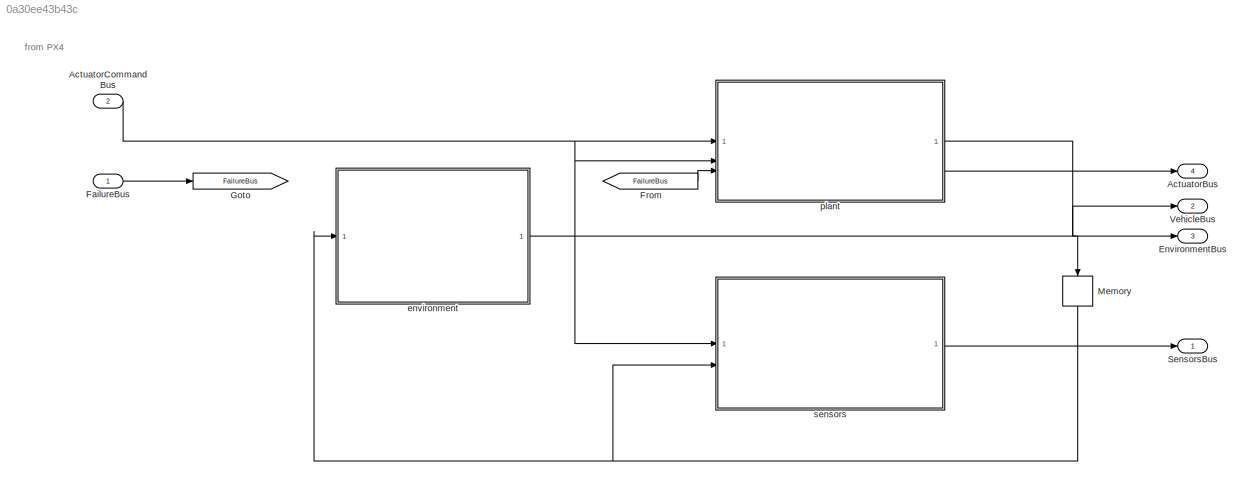
MODEL slx_0a30ee43b43c
KIND model
BLOCK [Outport] ActuatorBus
  OutDataTypeStr = Bus: ActuatorBus
  Port = 4
BLOCK [Inport] ActuatorCommandBus
  LockScale = on
  OutDataTypeStr = Bus: ActuatorCommandBus
  Port = 2
BLOCK [Outport] EnvironmentBus
  OutDataTypeStr = Bus: EnvironmentBus
  Port = 3
BLOCK [Inport] FailureBus
  OutDataTypeStr = Bus: FailureBus
BLOCK [From] From
  GotoTag = FailureBus
BLOCK [Goto] Goto
  GotoTag = FailureBus
BLOCK [Memory] Memory
  NameLocation = left
BLOCK [Outport] SensorsBus
  OutDataTypeStr = Bus: SensorsBus
BLOCK [Outport] VehicleBus
  OutDataTypeStr = Bus: VehicleBus
  Port = 2
BLOCK [ModelReference] environment
  ModelNameDialog = environment.slx
  ModelReferenceVersion = 1.14
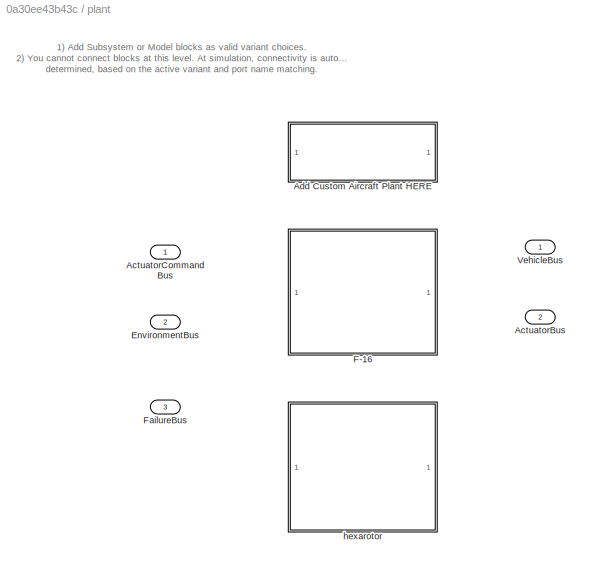
BLOCK [SubSystem] plant
  Variant = on
BLOCK [Outport] plant/ActuatorBus
  Port = 2
BLOCK [Inport] plant/ActuatorCommandBus
  LockScale = on
  OutDataTypeStr = Bus: ActuatorCommandBus
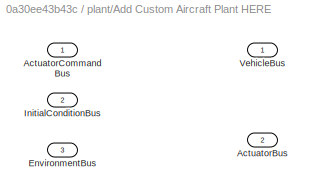
BLOCK [SubSystem] plant/Add Custom Aircraft Plant HERE
  VariantControl = strcmpi(vehicleParams.type ,"Custom")
BLOCK [Outport] plant/Add Custom Aircraft Plant HERE/ActuatorBus
  OutDataTypeStr = Bus: ActuatorBus
  Port = 2
BLOCK [Inport] plant/Add Custom Aircraft Plant HERE/ActuatorCommandBus
BLOCK [Inport] plant/Add Custom Aircraft Plant HERE/EnvironmentBus
  Port = 3
BLOCK [Inport] plant/Add Custom Aircraft Plant HERE/InitialConditionBus
  Port = 2
BLOCK [Outport] plant/Add Custom Aircraft Plant HERE/VehicleBus
BLOCK [Inport] plant/EnvironmentBus
  OutDataTypeStr = Bus: EnvironmentBus
  Port = 2
BLOCK [ModelReference] plant/F-16
  ModelNameDialog = F16.slx
  ModelReferenceVersion = 1.112
  VariantControl = strcmpi(vehicleParams.type ,"F-16")
BLOCK [Inport] plant/FailureBus
  OutDataTypeStr = Bus: FailureBus
  Port = 3
BLOCK [Outport] plant/VehicleBus
BLOCK [ModelReference] plant/hexarotor
  ModelNameDialog = hexarotor.slx
  ModelReferenceVersion = 1.31
  VariantControl = strcmpi(vehicleParams.type ,"hexarotor")
BLOCK [ModelReference] sensors
  ModelNameDialog = sensors.slx
  ModelReferenceVersion = 1.29
ANNOTATION (root): from PX4
ANNOTATION plant: 1) Add Subsystem or Model blocks as valid variant choices. 2) You cannot connect blocks at this level. At simulation, connectivity is automatically determined, based on the active variant and port name matching.
LINE ActuatorCommandBus:1 -> plant:1
LINE FailureBus:1 -> Goto:1
LINE From:1 -> plant:3
NET Memory:1 -> environment:1, sensors:2
NET environment:1 -> EnvironmentBus:1, plant:2, sensors:1
NET plant:1 -> Memory:1, VehicleBus:1
LINE plant:2 -> ActuatorBus:1
LINE sensors:1 -> SensorsBus:1
note: NET lines group one-source signal fan-out (src -> all destinations, sorted); 1:1 wires keep LINE
